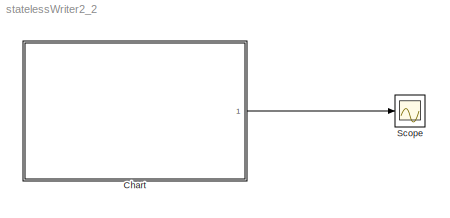
MODEL statelessWriter2_2
KIND model
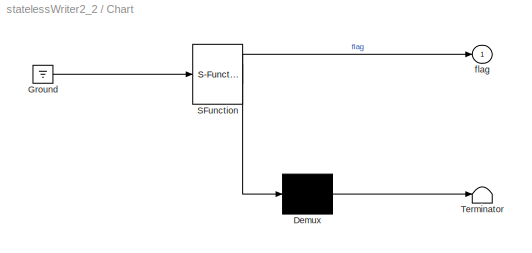
BLOCK [SubSystem] Chart
  ErrorFcn = Stateflow.Translate.translate
  PermitHierarchicalResolution = ExplicitOnly
  Ports = [0, 1]
  RequestExecContextInheritance = off
  SFBlockType = Chart
  SID = 1
  TreatAsAtomicUnit = on
BLOCK [Demux] Chart/ Demux 
  Outputs = 1
  Ports = [1, 1]
  SID = 1::95
BLOCK [Ground] Chart/ Ground 
  SID = 1::97
BLOCK [S-Function] Chart/ SFunction 
  EnableBusSupport = on
  FunctionName = sf_sfun
  PortCounts = [1 2]
  Ports = [1, 2]
  SFcnIsStateOwnerBlock = off
  SFunctionDeploymentMode = off
  SID = 1::94
  Tag = Stateflow S-Function statelessWriter2_2 3
BLOCK [Terminator] Chart/ Terminator 
  SID = 1::96
BLOCK [Outport] Chart/flag
  IconDisplay = Port number
  SID = 1::88
BLOCK [Scope] Scope
  Floating = off
  NumInputPorts = 1
  Ports = [1]
  SID = 14
  ScopeSpecificationString = Simulink.scopes.TimeScopeBlockCfg('CurrentConfiguration', extmgr.ConfigurationSet(extmgr.Configuration('Core','General UI',true),extmgr.Configuration('Core','Source UI',true),extmgr.Configuration('Sources','WiredSimulink',true),extmgr.Configuration('Visuals','Time Domain',true),extmgr.Configuration('Tools','Plot Navigation',true),extmgr.Configuration('Tools','Measurements',true)),'Version','2018a'...<+1ch>
LINE Chart/ Demux :1 -> Chart/ Terminator :1
LINE Chart/ Ground :1 -> Chart/ SFunction :1
LINE Chart/ SFunction :1 -> Chart/ Demux :1
LINE Chart/ SFunction :2 -> Chart/flag:1
LINE Chart:1 -> Scope:1
CHART Chart states=3 transitions=7
  STATE_LABEL 'repairing\\ndu: flag=0'
  STATE_LABEL 'waiting\\ndu: flag=1;'
  STATE_LABEL 'must_repair\\ndu: flag=1;'
